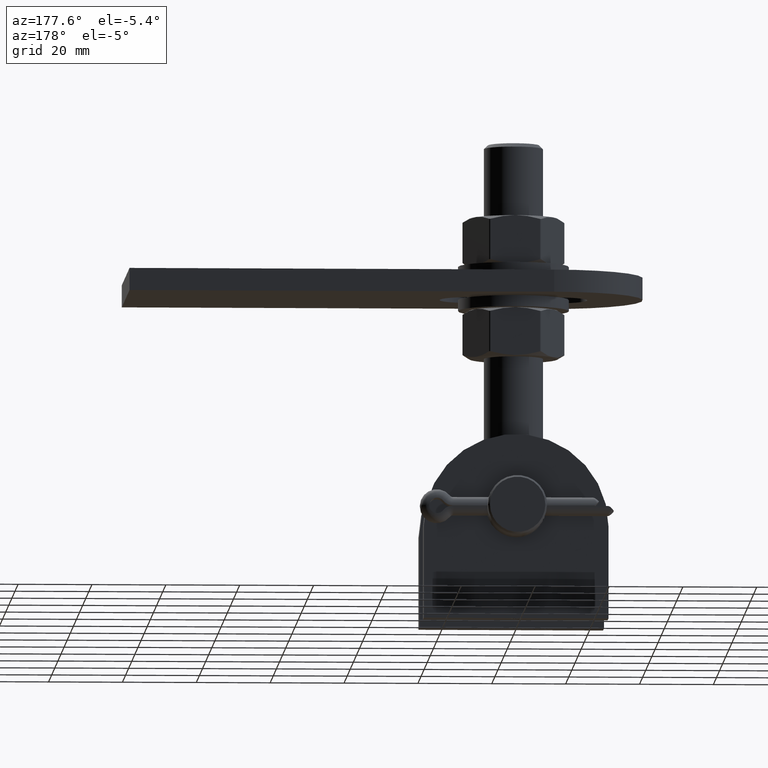
[diagram: clean part render]
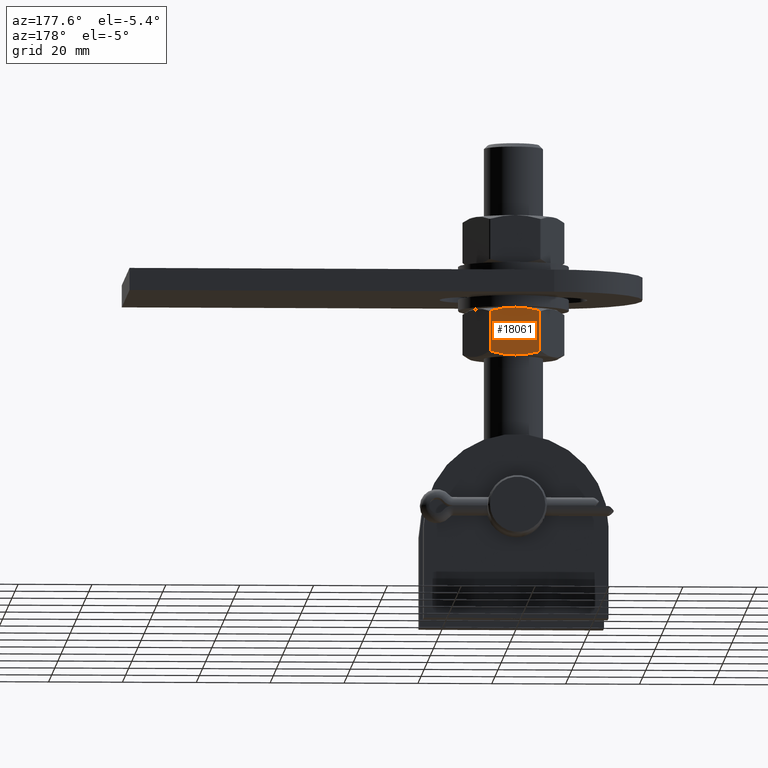
[diagram: same view with one face highlighted and labeled with its STEP entity id]
A machine part, auxiliary view. The second image highlights one B-rep face of the part: STEP entity #18061.
In plain terms, the highlighted planar face has unit normal (0, -1, 0).
Its self-contained STEP definition (entity closure, byte-faithful):
#109 = CARTESIAN_POINT ( 'NONE',  ( 12.62147978884749477, -6.062901251027057903, -2.138955739012437185 ) ) ;
#252 = EDGE_CURVE ( 'NONE', #9669, #8957, #5283, .T. ) ;
#952 = CARTESIAN_POINT ( 'NONE',  ( 11.51586903937519679, -6.406434174578384599, -4.053929730492755290 ) ) ;
#1568 = CARTESIAN_POINT ( 'NONE',  ( 13.71206889325361189, 5.510220883462368491, -0.2499999999999974465 ) ) ;
#2060 = EDGE_CURVE ( 'NONE', #18493, #9669, #13935, .T. ) ;
#2565 = CARTESIAN_POINT ( 'NONE',  ( 13.71206889325393341, -5.510220883462202401, -0.2499999999994518274 ) ) ;
#2682 = CARTESIAN_POINT ( 'NONE',  ( 8.161051184807732284, -6.062063013138934586, -9.864644704742827841 ) ) ;
#3300 = CARTESIAN_POINT ( 'NONE',  ( 10.39230484541326227, 6.500000000000005329, -5.999999999999998224 ) ) ;
#3903 = VERTEX_POINT ( 'NONE', #22203 ) ;
#5089 = CARTESIAN_POINT ( 'NONE',  ( 10.95744704231418964, -6.500000000000014211, -5.021145001466503111 ) ) ;
#5283 = B_SPLINE_CURVE_WITH_KNOTS ( 'NONE', 3,
 ( #2565, #26555, #109, #952, #5089, #9470 ),
 .UNSPECIFIED., .F., .F.,
 ( 4, 2, 4 ),
 ( 0.0002976420579474610461, 0.003654043546377305426, 0.007010445034807149915 ),
 .UNSPECIFIED. ) ;
#5368 = CARTESIAN_POINT ( 'NONE',  ( 7.615867869546497637, 5.813954435900760664, -10.80892990621412153 ) ) ;
#5413 = VECTOR ( 'NONE', #18836, 1000.000000000000000 ) ;
#5708 = DIRECTION ( 'NONE',  ( -0.000000000000000000, 1.000000000000000000, 1.372308401475337047E-42 ) ) ;
#6044 = VERTEX_POINT ( 'NONE', #12280 ) ;
#6584 = ORIENTED_EDGE ( 'NONE', *, *, #7476, .T. ) ;
#6816 = CARTESIAN_POINT ( 'NONE',  ( 9.828025114344686841, -6.476788126677502255, -6.977361163892073392 ) ) ;
#6887 = EDGE_CURVE ( 'NONE', #14608, #6044, #12632, .T. ) ;
#7064 = CARTESIAN_POINT ( 'NONE',  ( 10.95658457648184658, 6.476788126677501367, -5.022638836107909732 ) ) ;
#7065 = CARTESIAN_POINT ( 'NONE',  ( 10.39230484541326938, -6.500000000000005329, -5.999999999999998224 ) ) ;
#7466 = CARTESIAN_POINT ( 'NONE',  ( 9.268740651451333079, 6.406434174578382823, -7.946070269507237605 ) ) ;
#7476 = EDGE_CURVE ( 'NONE', #3903, #14608, #26208, .T. ) ;
#8036 = ORIENTED_EDGE ( 'NONE', *, *, #252, .T. ) ;
#8892 = CARTESIAN_POINT ( 'NONE',  ( 8.990347189129836991, -6.320028020092784082, -8.428261890743076634 ) ) ;
#8957 = VERTEX_POINT ( 'NONE', #7065 ) ;
#9229 = CARTESIAN_POINT ( 'NONE',  ( 11.79426250169669466, 6.320028020092783194, -3.571738109256910043 ) ) ;
#9420 = AXIS2_PLACEMENT_3D ( 'NONE', #16699, #12240, #20980 ) ;
#9470 = CARTESIAN_POINT ( 'NONE',  ( 10.39230484541326938, -6.500000000000005329, -5.999999999999998224 ) ) ;
#9669 = VERTEX_POINT ( 'NONE', #15295 ) ;
#11030 = CARTESIAN_POINT ( 'NONE',  ( 10.39230484541326938, -6.500000000000005329, -5.999999999999998224 ) ) ;
#11176 = CARTESIAN_POINT ( 'NONE',  ( 10.39230484541326227, 6.500000000000005329, -5.999999999999998224 ) ) ;
#11396 = ORIENTED_EDGE ( 'NONE', *, *, #13748, .T. ) ;
#11465 = CARTESIAN_POINT ( 'NONE',  ( 12.62355850601880292, 6.062063013138936363, -2.135355295257160613 ) ) ;
#11521 = ORIENTED_EDGE ( 'NONE', *, *, #6887, .T. ) ;
#11880 = B_SPLINE_CURVE_WITH_KNOTS ( 'NONE', 3,
 ( #11176, #17917, #7064, #15538, #9229, #11465, #13347, #13728 ),
 .UNSPECIFIED., .F., .F.,
 ( 4, 2, 2, 4 ),
 ( 0.007010445034807143844, 0.008682192066603519609, 0.01035393909839989537, 0.01369743316199264691 ),
 .UNSPECIFIED. ) ;
#12240 = DIRECTION ( 'NONE',  ( -0.8660254037844382635, 0.000000000000000000, 0.5000000000000008882 ) ) ;
#12280 = CARTESIAN_POINT ( 'NONE',  ( 10.39230484541326227, 6.500000000000005329, -5.999999999999998224 ) ) ;
#12632 = B_SPLINE_CURVE_WITH_KNOTS ( 'NONE', 3,
 ( #20598, #5368, #13951, #7466, #22490, #3300 ),
 .UNSPECIFIED., .F., .F.,
 ( 4, 2, 4 ),
 ( 0.0002976420579474647866, 0.003654043546377304559, 0.007010445034807143844 ),
 .UNSPECIFIED. ) ;
#13134 = CARTESIAN_POINT ( 'NONE',  ( 7.072540797572904658, -5.510220883462424446, -11.74999999999998757 ) ) ;
#13347 = CARTESIAN_POINT ( 'NONE',  ( 13.17005630627476620, 5.813219605597458539, -1.188793338989204251 ) ) ;
#13728 = CARTESIAN_POINT ( 'NONE',  ( 13.71206889325361189, 5.510220883462368491, -0.2499999999999974465 ) ) ;
#13748 = EDGE_CURVE ( 'NONE', #8957, #3903, #27562, .T. ) ;
#13935 = LINE ( 'NONE', #14267, #5413 ) ;
#13951 = CARTESIAN_POINT ( 'NONE',  ( 8.163129901979042202, 6.062901251027059679, -9.861044260987551269 ) ) ;
#14186 = ORIENTED_EDGE ( 'NONE', *, *, #25578, .T. ) ;
#14267 = CARTESIAN_POINT ( 'NONE',  ( 13.71206889325361189, 6.500000000000005329, -0.2499999999999975020 ) ) ;
#14608 = VERTEX_POINT ( 'NONE', #26130 ) ;
#14759 = EDGE_LOOP ( 'NONE', ( #14186, #18653, #8036, #11396, #6584, #11521 ) ) ;
#15295 = CARTESIAN_POINT ( 'NONE',  ( 13.71206889325393341, -5.510220883462202401, -0.2499999999994518274 ) ) ;
#15538 = CARTESIAN_POINT ( 'NONE',  ( 11.51623569666507763, 6.386760395136424684, -4.053294661437721658 ) ) ;
#15686 = CARTESIAN_POINT ( 'NONE',  ( 10.11082040635887580, -6.500000000000014211, -6.487545349982224430 ) ) ;
#16699 = CARTESIAN_POINT ( 'NONE',  ( 13.85640646055101755, 6.500000000000005329, 2.748183035367769064E-17 ) ) ;
#17917 = CARTESIAN_POINT ( 'NONE',  ( 10.67378928446765585, 6.500000000000014211, -5.512454650017772018 ) ) ;
#18061 = ADVANCED_FACE ( 'NONE', ( #21518 ), #27290, .F. ) ;
#18493 = VERTEX_POINT ( 'NONE', #1568 ) ;
#18653 = ORIENTED_EDGE ( 'NONE', *, *, #2060, .T. ) ;
#18836 = DIRECTION ( 'NONE',  ( 0.000000000000000000, -1.000000000000000000, -1.372308401475337047E-42 ) ) ;
#20459 = VECTOR ( 'NONE', #5708, 1000.000000000000000 ) ;
#20598 = CARTESIAN_POINT ( 'NONE',  ( 7.072540797572592908, 5.510220883462202401, -11.75000000000053113 ) ) ;
#20980 = DIRECTION ( 'NONE',  ( 0.5000000000000007772, 0.000000000000000000, 0.8660254037844381525 ) ) ;
#21518 = FACE_OUTER_BOUND ( 'NONE', #14759, .T. ) ;
#21773 = CARTESIAN_POINT ( 'NONE',  ( 7.614553384551769888, -5.813219605597463868, -10.81120666101078598 ) ) ;
#22135 = CARTESIAN_POINT ( 'NONE',  ( 9.268373994161455798, -6.386760395136426460, -7.946705338562263243 ) ) ;
#22203 = CARTESIAN_POINT ( 'NONE',  ( 7.072540797572904658, -5.510220883462424446, -11.74999999999998757 ) ) ;
#22490 = CARTESIAN_POINT ( 'NONE',  ( 9.827162648512342003, 6.500000000000014211, -6.978854998533490672 ) ) ;
#25269 = CARTESIAN_POINT ( 'NONE',  ( 7.072540797572905547, 6.500000000000005329, -11.74999999999998934 ) ) ;
#25578 = EDGE_CURVE ( 'NONE', #6044, #18493, #11880, .T. ) ;
#26130 = CARTESIAN_POINT ( 'NONE',  ( 7.072540797572592908, 5.510220883462202401, -11.75000000000053113 ) ) ;
#26208 = LINE ( 'NONE', #25269, #20459 ) ;
#26555 = CARTESIAN_POINT ( 'NONE',  ( 13.16874182128003135, -5.813954435900757112, -1.191070093785864259 ) ) ;
#27290 = PLANE ( 'NONE',  #9420 ) ;
#27562 = B_SPLINE_CURVE_WITH_KNOTS ( 'NONE', 3,
 ( #11030, #15686, #6816, #22135, #8892, #2682, #21773, #13134 ),
 .UNSPECIFIED., .F., .F.,
 ( 4, 2, 2, 4 ),
 ( 0.007010445034807149915, 0.008682192066603526548, 0.01035393909839990578, 0.01369743316199265905 ),
 .UNSPECIFIED. ) ;